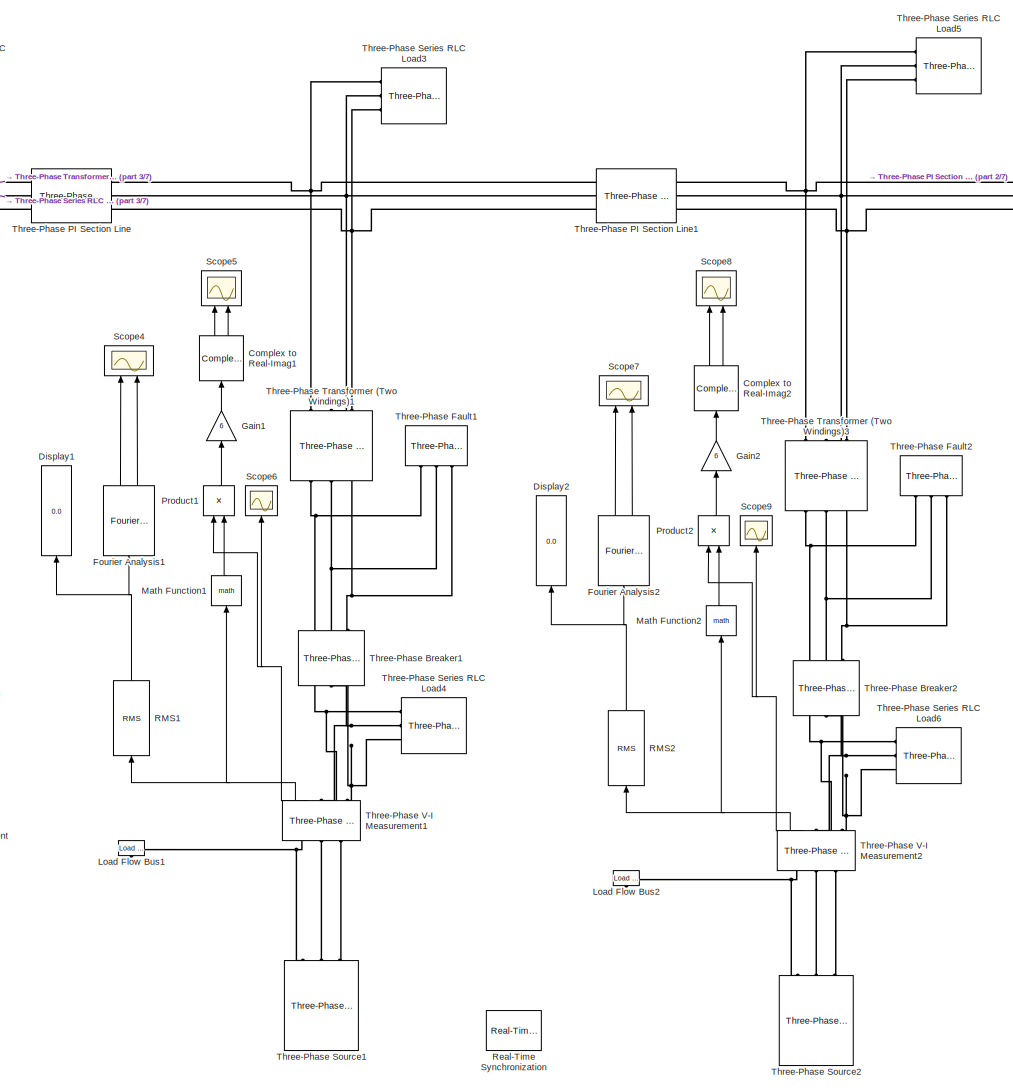
[diagram: root canvas - part 1/7, top center region]
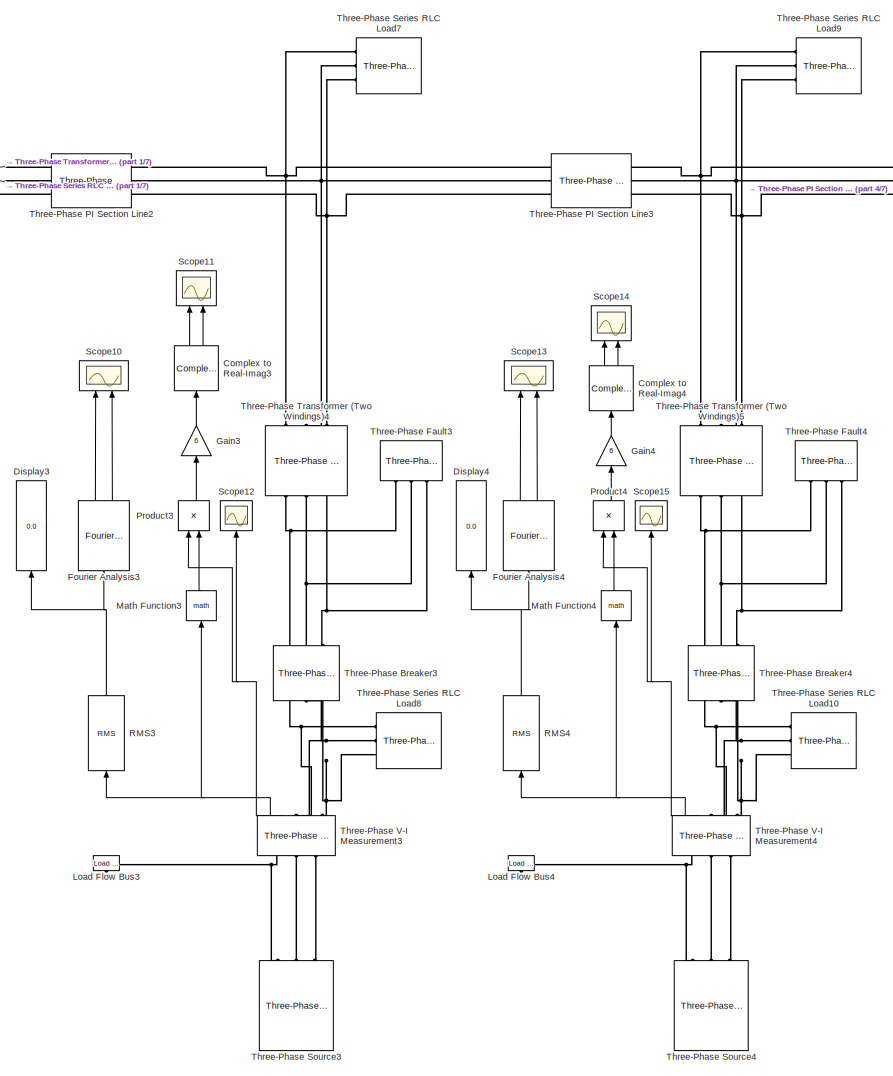
[diagram: root canvas - part 2/7, top right region]
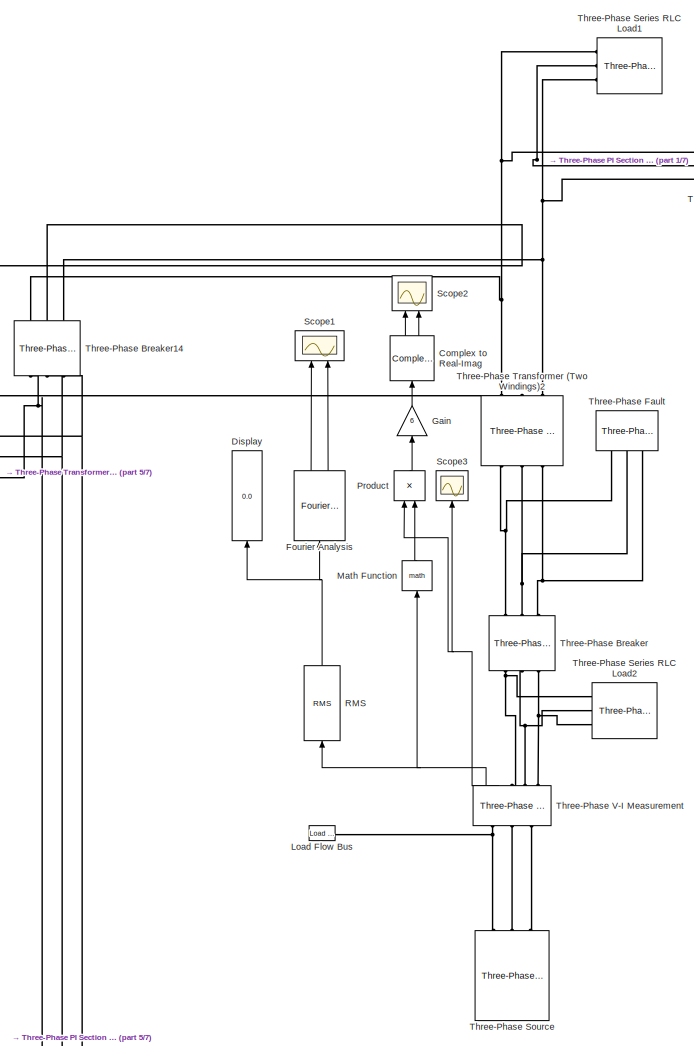
[diagram: root canvas - part 3/7, top left region]
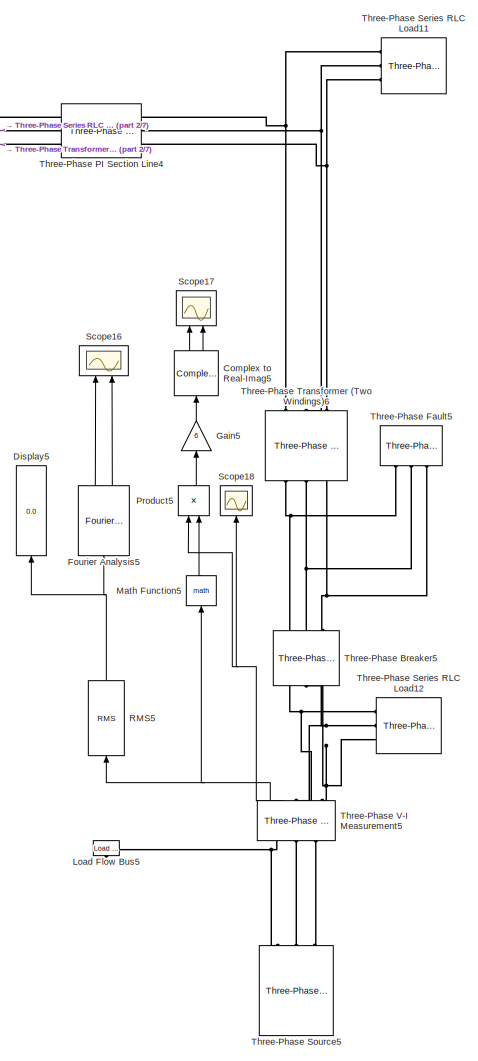
[diagram: root canvas - part 4/7, top right region]
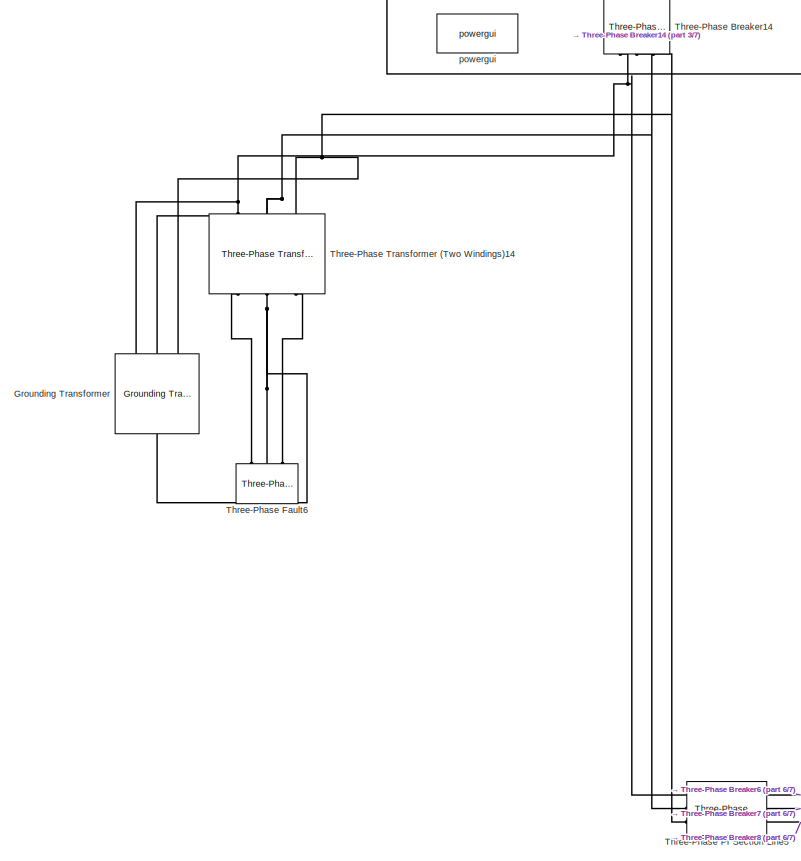
[diagram: root canvas - part 5/7, middle left region]
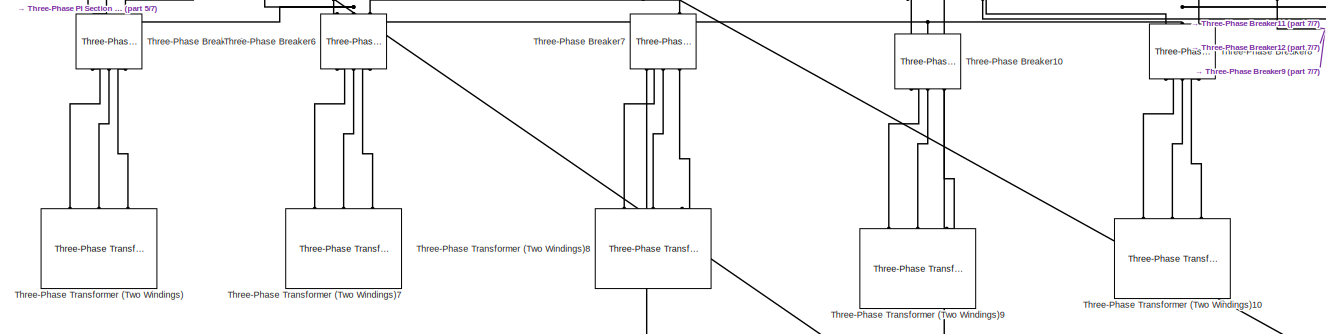
[diagram: root canvas - part 6/7, central region]
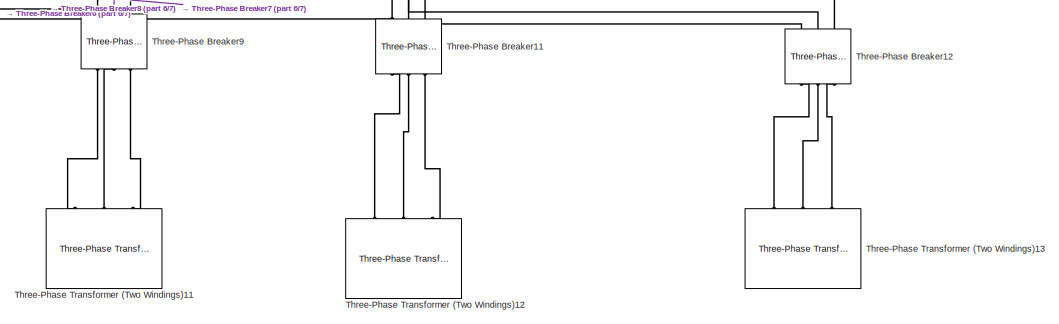
[diagram: root canvas - part 7/7, middle right region]
MODEL slx_9a9568b92dcb
KIND model
CONFIG AbsTol = auto
CONFIG EnableMultiTasking = off
CONFIG FixedStep = auto
CONFIG MaxStep = auto
CONFIG MinStep = auto
CONFIG RelTol = 1e-3
CONFIG SampleTimeConstraint = Unconstrained
CONFIG Solver = VariableStepAuto
CONFIG SolverName = VariableStepAuto
CONFIG StartTime = 0.0
CONFIG StopTime = 10.0
BLOCK [ComplexToRealImag] Complex to Real-Imag
  Ports = [1, 2]
BLOCK [ComplexToRealImag] Complex to Real-Imag1
  Ports = [1, 2]
BLOCK [ComplexToRealImag] Complex to Real-Imag2
  Ports = [1, 2]
BLOCK [ComplexToRealImag] Complex to Real-Imag3
  Ports = [1, 2]
BLOCK [ComplexToRealImag] Complex to Real-Imag4
  Ports = [1, 2]
BLOCK [ComplexToRealImag] Complex to Real-Imag5
  Ports = [1, 2]
BLOCK [Display] Display
  Decimation = 1
  Ports = [1]
BLOCK [Display] Display1
  Decimation = 1
  Ports = [1]
BLOCK [Display] Display2
  Decimation = 1
  Ports = [1]
BLOCK [Display] Display3
  Decimation = 1
  Ports = [1]
BLOCK [Display] Display4
  Decimation = 1
  Ports = [1]
BLOCK [Display] Display5
  Decimation = 1
  Ports = [1]
BLOCK [Reference] Fourier Analysis  REF=peGeneralControl/Fourier Analysis
  Ports = [1, 2]
  SourceBlock = peGeneralControl/Fourier Analysis
  SourceType = Fourier Analysis
BLOCK [Reference] Fourier Analysis1  REF=peGeneralControl/Fourier Analysis
  Ports = [1, 2]
  SourceBlock = peGeneralControl/Fourier Analysis
  SourceType = Fourier Analysis
BLOCK [Reference] Fourier Analysis2  REF=peGeneralControl/Fourier Analysis
  Ports = [1, 2]
  SourceBlock = peGeneralControl/Fourier Analysis
  SourceType = Fourier Analysis
BLOCK [Reference] Fourier Analysis3  REF=peGeneralControl/Fourier Analysis
  Ports = [1, 2]
  SourceBlock = peGeneralControl/Fourier Analysis
  SourceType = Fourier Analysis
BLOCK [Reference] Fourier Analysis4  REF=peGeneralControl/Fourier Analysis
  Ports = [1, 2]
  SourceBlock = peGeneralControl/Fourier Analysis
  SourceType = Fourier Analysis
BLOCK [Reference] Fourier Analysis5  REF=peGeneralControl/Fourier Analysis
  Ports = [1, 2]
  SourceBlock = peGeneralControl/Fourier Analysis
  SourceType = Fourier Analysis
BLOCK [Gain] Gain
  Gain = 6
  OutDataTypeStr = Inherit: Inherit via internal rule
  ParamDataTypeStr = Inherit: Inherit via internal rule
  SaturateOnIntegerOverflow = off
BLOCK [Gain] Gain1
  Gain = 6
  OutDataTypeStr = Inherit: Inherit via internal rule
  ParamDataTypeStr = Inherit: Inherit via internal rule
  SaturateOnIntegerOverflow = off
BLOCK [Gain] Gain2
  Gain = 6
  OutDataTypeStr = Inherit: Inherit via internal rule
  ParamDataTypeStr = Inherit: Inherit via internal rule
  SaturateOnIntegerOverflow = off
BLOCK [Gain] Gain3
  Gain = 6
  OutDataTypeStr = Inherit: Inherit via internal rule
  ParamDataTypeStr = Inherit: Inherit via internal rule
  SaturateOnIntegerOverflow = off
BLOCK [Gain] Gain4
  Gain = 6
  OutDataTypeStr = Inherit: Inherit via internal rule
  ParamDataTypeStr = Inherit: Inherit via internal rule
  SaturateOnIntegerOverflow = off
BLOCK [Gain] Gain5
  Gain = 6
  OutDataTypeStr = Inherit: Inherit via internal rule
  ParamDataTypeStr = Inherit: Inherit via internal rule
  SaturateOnIntegerOverflow = off
BLOCK [Reference] Grounding Transformer   REF=powerlib/Elements/Grounding
Transformer 
  Ports = [0, 0, 0, 0, 0, 3, 1]
  SourceBlock = powerlib/Elements/Grounding\nTransformer
  SourceProductBaseCode = PS
  SourceProductName = Simscape Power Systems
  SourceType = Grounding Transformer
BLOCK [Reference] Load Flow Bus  REF=powerlib/Measurements/Load Flow Bus
  AttributesFormatString = %<ID>\n%<Vbase>V\n%<VLF>pu\n%<angleLF>deg.
  Ports = [0, 0, 0, 0, 0, 1]
  SourceBlock = powerlib/Measurements/Load Flow Bus
  SourceProductBaseCode = PS
  SourceProductName = Simscape Power Systems
  SourceType = Load Flow Bus
BLOCK [Reference] Load Flow Bus1  REF=powerlib/Measurements/Load Flow Bus
  AttributesFormatString = %<ID>\n%<Vbase>V\n%<VLF>pu\n%<angleLF>deg.
  Ports = [0, 0, 0, 0, 0, 1]
  SourceBlock = powerlib/Measurements/Load Flow Bus
  SourceProductBaseCode = PS
  SourceProductName = Simscape Power Systems
  SourceType = Load Flow Bus
BLOCK [Reference] Load Flow Bus2  REF=powerlib/Measurements/Load Flow Bus
  AttributesFormatString = %<ID>\n%<Vbase>V\n%<VLF>pu\n%<angleLF>deg.
  Ports = [0, 0, 0, 0, 0, 1]
  SourceBlock = powerlib/Measurements/Load Flow Bus
  SourceProductBaseCode = PS
  SourceProductName = Simscape Power Systems
  SourceType = Load Flow Bus
BLOCK [Reference] Load Flow Bus3  REF=powerlib/Measurements/Load Flow Bus
  AttributesFormatString = %<ID>\n%<Vbase>V\n%<VLF>pu\n%<angleLF>deg.
  Ports = [0, 0, 0, 0, 0, 1]
  SourceBlock = powerlib/Measurements/Load Flow Bus
  SourceProductBaseCode = PS
  SourceProductName = Simscape Power Systems
  SourceType = Load Flow Bus
BLOCK [Reference] Load Flow Bus4  REF=powerlib/Measurements/Load Flow Bus
  AttributesFormatString = %<ID>\n%<Vbase>V\n%<VLF>pu\n%<angleLF>deg.
  Ports = [0, 0, 0, 0, 0, 1]
  SourceBlock = powerlib/Measurements/Load Flow Bus
  SourceProductBaseCode = PS
  SourceProductName = Simscape Power Systems
  SourceType = Load Flow Bus
BLOCK [Reference] Load Flow Bus5  REF=powerlib/Measurements/Load Flow Bus
  AttributesFormatString = %<ID>\n%<Vbase>V\n%<VLF>pu\n%<angleLF>deg.
  Ports = [0, 0, 0, 0, 0, 1]
  SourceBlock = powerlib/Measurements/Load Flow Bus
  SourceProductBaseCode = PS
  SourceProductName = Simscape Power Systems
  SourceType = Load Flow Bus
BLOCK [Math] Math Function
  Ports = [1, 1]
BLOCK [Math] Math Function1
  Ports = [1, 1]
BLOCK [Math] Math Function2
  Ports = [1, 1]
BLOCK [Math] Math Function3
  Ports = [1, 1]
BLOCK [Math] Math Function4
  Ports = [1, 1]
BLOCK [Math] Math Function5
  Ports = [1, 1]
BLOCK [Product] Product
  InputSameDT = off
  OutDataTypeStr = Inherit: Inherit via internal rule
  Ports = [2, 1]
  RndMeth = Floor
  SaturateOnIntegerOverflow = off
BLOCK [Product] Product1
  InputSameDT = off
  OutDataTypeStr = Inherit: Inherit via internal rule
  Ports = [2, 1]
  RndMeth = Floor
  SaturateOnIntegerOverflow = off
BLOCK [Product] Product2
  InputSameDT = off
  OutDataTypeStr = Inherit: Inherit via internal rule
  Ports = [2, 1]
  RndMeth = Floor
  SaturateOnIntegerOverflow = off
BLOCK [Product] Product3
  InputSameDT = off
  OutDataTypeStr = Inherit: Inherit via internal rule
  Ports = [2, 1]
  RndMeth = Floor
  SaturateOnIntegerOverflow = off
BLOCK [Product] Product4
  InputSameDT = off
  OutDataTypeStr = Inherit: Inherit via internal rule
  Ports = [2, 1]
  RndMeth = Floor
  SaturateOnIntegerOverflow = off
BLOCK [Product] Product5
  InputSameDT = off
  OutDataTypeStr = Inherit: Inherit via internal rule
  Ports = [2, 1]
  RndMeth = Floor
  SaturateOnIntegerOverflow = off
BLOCK [Reference] RMS  REF=dspstat3/RMS
  Ports = [1, 1]
  SourceBlock = dspstat3/RMS
  SourceProductBaseCode = DS
  SourceProductName = DSP System Toolbox
  SourceType = RMS
  UserDataPersistent = on
BLOCK [Reference] RMS1  REF=dspstat3/RMS
  Ports = [1, 1]
  SourceBlock = dspstat3/RMS
  SourceProductBaseCode = DS
  SourceProductName = DSP System Toolbox
  SourceType = RMS
  UserDataPersistent = on
BLOCK [Reference] RMS2  REF=dspstat3/RMS
  Ports = [1, 1]
  SourceBlock = dspstat3/RMS
  SourceProductBaseCode = DS
  SourceProductName = DSP System Toolbox
  SourceType = RMS
  UserDataPersistent = on
BLOCK [Reference] RMS3  REF=dspstat3/RMS
  Ports = [1, 1]
  SourceBlock = dspstat3/RMS
  SourceProductBaseCode = DS
  SourceProductName = DSP System Toolbox
  SourceType = RMS
  UserDataPersistent = on
BLOCK [Reference] RMS4  REF=dspstat3/RMS
  Ports = [1, 1]
  SourceBlock = dspstat3/RMS
  SourceProductBaseCode = DS
  SourceProductName = DSP System Toolbox
  SourceType = RMS
  UserDataPersistent = on
BLOCK [Reference] RMS5  REF=dspstat3/RMS
  Ports = [1, 1]
  SourceBlock = dspstat3/RMS
  SourceProductBaseCode = DS
  SourceProductName = DSP System Toolbox
  SourceType = RMS
  UserDataPersistent = on
BLOCK [Reference] Real-Time Synchronization  REF=sldrtlib/Real-Time
Synchronization
  Ports = []
  SourceBlock = sldrtlib/Real-Time\nSynchronization
  SourceProductBaseCode = WT
  SourceProductName = Simulink Desktop Real-Time
  SourceType = Simulink Desktop Real-Time Synchronization
BLOCK [Scope] Scope1
  Floating = off
  NumInputPorts = 2
  Ports = [2]
  ScopeSpecificationString = Simulink.scopes.TimeScopeBlockCfg('CurrentConfiguration', extmgr.ConfigurationSet(extmgr.Configuration('Core','General UI',true),extmgr.Configuration('Core','Source UI',true),extmgr.Configuration('Sources','WiredSimulink',true,'DataLoggingVariableName','ScopeData1'),extmgr.Configuration('Visuals','Time Domain',true,'SerializedDisplays',{struct('MinYLimReal','-7150.85611','MaxYLimReal','64357.71366...<+1547ch>
BLOCK [Scope] Scope10
  Floating = off
  NumInputPorts = 2
  Ports = [2]
  ScopeSpecificationString = Simulink.scopes.TimeScopeBlockCfg('CurrentConfiguration', extmgr.ConfigurationSet(extmgr.Configuration('Core','General UI',true),extmgr.Configuration('Core','Source UI',true),extmgr.Configuration('Sources','WiredSimulink',true,'DataLoggingVariableName','ScopeData7'),extmgr.Configuration('Visuals','Time Domain',true,'SerializedDisplays',{struct('MinYLimReal','-7150.85611','MaxYLimReal','64357.71366...<+1547ch>
BLOCK [Scope] Scope11
  Floating = off
  NumInputPorts = 2
  Ports = [2]
  ScopeSpecificationString = Simulink.scopes.TimeScopeBlockCfg('CurrentConfiguration', extmgr.ConfigurationSet(extmgr.Configuration('Core','General UI',true),extmgr.Configuration('Core','Source UI',true),extmgr.Configuration('Sources','WiredSimulink',true,'DataLoggingVariableName','ScopeData8'),extmgr.Configuration('Visuals','Time Domain',true,'SerializedDisplays',{struct('MinYLimReal','-31894.01729','MaxYLimReal','38953.4457...<+1575ch>
BLOCK [Scope] Scope12
  Floating = off
  NumInputPorts = 1
  Ports = [1]
  ScopeSpecificationString = Simulink.scopes.TimeScopeBlockCfg('CurrentConfiguration', extmgr.ConfigurationSet(extmgr.Configuration('Core','General UI',true),extmgr.Configuration('Core','Source UI',true),extmgr.Configuration('Sources','WiredSimulink',true,'DataLoggingVariableName','ScopeData9'),extmgr.Configuration('Visuals','Time Domain',true),extmgr.Configuration('Tools','Plot Navigation',true),extmgr.Configuration('Tools',...<+40ch>
BLOCK [Scope] Scope13
  Floating = off
  NumInputPorts = 2
  Ports = [2]
  ScopeSpecificationString = Simulink.scopes.TimeScopeBlockCfg('CurrentConfiguration', extmgr.ConfigurationSet(extmgr.Configuration('Core','General UI',true),extmgr.Configuration('Core','Source UI',true),extmgr.Configuration('Sources','WiredSimulink',true,'DataLoggingVariableName','ScopeData1'),extmgr.Configuration('Visuals','Time Domain',true,'SerializedDisplays',{struct('MinYLimReal','-7150.85611','MaxYLimReal','64357.71366...<+1551ch>
BLOCK [Scope] Scope14
  Floating = off
  NumInputPorts = 2
  Ports = [2]
  ScopeSpecificationString = Simulink.scopes.TimeScopeBlockCfg('CurrentConfiguration', extmgr.ConfigurationSet(extmgr.Configuration('Core','General UI',true),extmgr.Configuration('Core','Source UI',true),extmgr.Configuration('Sources','WiredSimulink',true,'DataLoggingVariableName','ScopeData2'),extmgr.Configuration('Visuals','Time Domain',true,'SerializedDisplays',{struct('MinYLimReal','-14.27839','MaxYLimReal','13.71434','YL...<+1557ch>
BLOCK [Scope] Scope15
  Floating = off
  NumInputPorts = 1
  Ports = [1]
  ScopeSpecificationString = Simulink.scopes.TimeScopeBlockCfg('CurrentConfiguration', extmgr.ConfigurationSet(extmgr.Configuration('Core','General UI',true),extmgr.Configuration('Core','Source UI',true),extmgr.Configuration('Sources','WiredSimulink',true,'DataLoggingVariableName','ScopeData3'),extmgr.Configuration('Visuals','Time Domain',true,'SerializedDisplays',{struct('MinYLimReal','-2.46762','MaxYLimReal','2.20981','YLab...<+1476ch>
BLOCK [Scope] Scope16
  Floating = off
  NumInputPorts = 2
  Ports = [2]
  ScopeSpecificationString = Simulink.scopes.TimeScopeBlockCfg('CurrentConfiguration', extmgr.ConfigurationSet(extmgr.Configuration('Core','General UI',true),extmgr.Configuration('Core','Source UI',true),extmgr.Configuration('Sources','WiredSimulink',true,'DataLoggingVariableName','ScopeData4'),extmgr.Configuration('Visuals','Time Domain',true,'SerializedDisplays',{struct('MinYLimReal','-7150.85611','MaxYLimReal','64357.71366...<+1547ch>
BLOCK [Scope] Scope17
  Floating = off
  NumInputPorts = 2
  Ports = [2]
  ScopeSpecificationString = Simulink.scopes.TimeScopeBlockCfg('CurrentConfiguration', extmgr.ConfigurationSet(extmgr.Configuration('Core','General UI',true),extmgr.Configuration('Core','Source UI',true),extmgr.Configuration('Sources','WiredSimulink',true,'DataLoggingVariableName','ScopeData5'),extmgr.Configuration('Visuals','Time Domain',true,'SerializedDisplays',{struct('MinYLimReal','-31894.01653','MaxYLimReal','38953.4649...<+1575ch>
BLOCK [Scope] Scope18
  Floating = off
  NumInputPorts = 1
  Ports = [1]
  ScopeSpecificationString = Simulink.scopes.TimeScopeBlockCfg('CurrentConfiguration', extmgr.ConfigurationSet(extmgr.Configuration('Core','General UI',true),extmgr.Configuration('Core','Source UI',true),extmgr.Configuration('Sources','WiredSimulink',true,'DataLoggingVariableName','ScopeData6'),extmgr.Configuration('Visuals','Time Domain',true),extmgr.Configuration('Tools','Plot Navigation',true),extmgr.Configuration('Tools',...<+40ch>
BLOCK [Scope] Scope2
  Floating = off
  NumInputPorts = 2
  Ports = [2]
  ScopeSpecificationString = Simulink.scopes.TimeScopeBlockCfg('CurrentConfiguration', extmgr.ConfigurationSet(extmgr.Configuration('Core','General UI',true),extmgr.Configuration('Core','Source UI',true),extmgr.Configuration('Sources','WiredSimulink',true,'DataLoggingVariableName','ScopeData2'),extmgr.Configuration('Visuals','Time Domain',true,'SerializedDisplays',{struct('MinYLimReal','-422.26109','MaxYLimReal','328.51662','...<+1559ch>
BLOCK [Scope] Scope3
  Floating = off
  NumInputPorts = 1
  Ports = [1]
  ScopeSpecificationString = Simulink.scopes.TimeScopeBlockCfg('CurrentConfiguration', extmgr.ConfigurationSet(extmgr.Configuration('Core','General UI',true),extmgr.Configuration('Core','Source UI',true),extmgr.Configuration('Sources','WiredSimulink',true,'DataLoggingVariableName','ScopeData1'),extmgr.Configuration('Visuals','Time Domain',true),extmgr.Configuration('Tools','Plot Navigation',true),extmgr.Configuration('Tools',...<+40ch>
BLOCK [Scope] Scope4
  Floating = off
  NumInputPorts = 2
  Ports = [2]
  ScopeSpecificationString = Simulink.scopes.TimeScopeBlockCfg('CurrentConfiguration', extmgr.ConfigurationSet(extmgr.Configuration('Core','General UI',true),extmgr.Configuration('Core','Source UI',true),extmgr.Configuration('Sources','WiredSimulink',true,'DataLoggingVariableName','ScopeData1'),extmgr.Configuration('Visuals','Time Domain',true,'SerializedDisplays',{struct('MinYLimReal','-7150.85611','MaxYLimReal','64357.71366...<+1547ch>
BLOCK [Scope] Scope5
  Floating = off
  NumInputPorts = 2
  Ports = [2]
  ScopeSpecificationString = Simulink.scopes.TimeScopeBlockCfg('CurrentConfiguration', extmgr.ConfigurationSet(extmgr.Configuration('Core','General UI',true),extmgr.Configuration('Core','Source UI',true),extmgr.Configuration('Sources','WiredSimulink',true,'DataLoggingVariableName','ScopeData2'),extmgr.Configuration('Visuals','Time Domain',true,'SerializedDisplays',{struct('MinYLimReal','-31894.01729','MaxYLimReal','38953.4457...<+1575ch>
BLOCK [Scope] Scope6
  Floating = off
  NumInputPorts = 1
  Ports = [1]
  ScopeSpecificationString = Simulink.scopes.TimeScopeBlockCfg('CurrentConfiguration', extmgr.ConfigurationSet(extmgr.Configuration('Core','General UI',true),extmgr.Configuration('Core','Source UI',true),extmgr.Configuration('Sources','WiredSimulink',true,'DataLoggingVariableName','ScopeData3'),extmgr.Configuration('Visuals','Time Domain',true),extmgr.Configuration('Tools','Plot Navigation',true),extmgr.Configuration('Tools',...<+40ch>
BLOCK [Scope] Scope7
  Floating = off
  NumInputPorts = 2
  Ports = [2]
  ScopeSpecificationString = Simulink.scopes.TimeScopeBlockCfg('CurrentConfiguration', extmgr.ConfigurationSet(extmgr.Configuration('Core','General UI',true),extmgr.Configuration('Core','Source UI',true),extmgr.Configuration('Sources','WiredSimulink',true,'DataLoggingVariableName','ScopeData4'),extmgr.Configuration('Visuals','Time Domain',true,'SerializedDisplays',{struct('MinYLimReal','-7150.85611','MaxYLimReal','64357.71366...<+1547ch>
BLOCK [Scope] Scope8
  Floating = off
  NumInputPorts = 2
  Ports = [2]
  ScopeSpecificationString = Simulink.scopes.TimeScopeBlockCfg('CurrentConfiguration', extmgr.ConfigurationSet(extmgr.Configuration('Core','General UI',true),extmgr.Configuration('Core','Source UI',true),extmgr.Configuration('Sources','WiredSimulink',true,'DataLoggingVariableName','ScopeData5'),extmgr.Configuration('Visuals','Time Domain',true,'SerializedDisplays',{struct('MinYLimReal','-31894.01729','MaxYLimReal','38953.4457...<+1575ch>
BLOCK [Scope] Scope9
  Floating = off
  NumInputPorts = 1
  Ports = [1]
  ScopeSpecificationString = Simulink.scopes.TimeScopeBlockCfg('CurrentConfiguration', extmgr.ConfigurationSet(extmgr.Configuration('Core','General UI',true),extmgr.Configuration('Core','Source UI',true),extmgr.Configuration('Sources','WiredSimulink',true,'DataLoggingVariableName','ScopeData6'),extmgr.Configuration('Visuals','Time Domain',true),extmgr.Configuration('Tools','Plot Navigation',true),extmgr.Configuration('Tools',...<+40ch>
BLOCK [Reference] Three-Phase Breaker  REF=powerlib/Elements/Three-Phase Breaker
  Ports = [0, 0, 0, 0, 0, 3, 3]
  SourceBlock = powerlib/Elements/Three-Phase Breaker
  SourceProductBaseCode = PS
  SourceProductName = Simscape Power Systems
  SourceType = Three-Phase Breaker
BLOCK [Reference] Three-Phase Breaker1  REF=powerlib/Elements/Three-Phase Breaker
  Ports = [0, 0, 0, 0, 0, 3, 3]
  SourceBlock = powerlib/Elements/Three-Phase Breaker
  SourceProductBaseCode = PS
  SourceProductName = Simscape Power Systems
  SourceType = Three-Phase Breaker
BLOCK [Reference] Three-Phase Breaker10  REF=powerlib/Elements/Three-Phase Breaker
  Ports = [0, 0, 0, 0, 0, 3, 3]
  SourceBlock = powerlib/Elements/Three-Phase Breaker
  SourceProductBaseCode = PS
  SourceProductName = Simscape Power Systems
  SourceType = Three-Phase Breaker
BLOCK [Reference] Three-Phase Breaker11  REF=powerlib/Elements/Three-Phase Breaker
  Ports = [0, 0, 0, 0, 0, 3, 3]
  SourceBlock = powerlib/Elements/Three-Phase Breaker
  SourceProductBaseCode = PS
  SourceProductName = Simscape Power Systems
  SourceType = Three-Phase Breaker
BLOCK [Reference] Three-Phase Breaker12  REF=powerlib/Elements/Three-Phase Breaker
  Ports = [0, 0, 0, 0, 0, 3, 3]
  SourceBlock = powerlib/Elements/Three-Phase Breaker
  SourceProductBaseCode = PS
  SourceProductName = Simscape Power Systems
  SourceType = Three-Phase Breaker
BLOCK [Reference] Three-Phase Breaker13  REF=powerlib/Elements/Three-Phase Breaker
  Ports = [0, 0, 0, 0, 0, 3, 3]
  SourceBlock = powerlib/Elements/Three-Phase Breaker
  SourceProductBaseCode = PS
  SourceProductName = Simscape Power Systems
  SourceType = Three-Phase Breaker
BLOCK [Reference] Three-Phase Breaker14  REF=powerlib/Elements/Three-Phase Breaker
  Ports = [0, 0, 0, 0, 0, 3, 3]
  SourceBlock = powerlib/Elements/Three-Phase Breaker
  SourceProductBaseCode = PS
  SourceProductName = Simscape Power Systems
  SourceType = Three-Phase Breaker
BLOCK [Reference] Three-Phase Breaker2  REF=powerlib/Elements/Three-Phase Breaker
  Ports = [0, 0, 0, 0, 0, 3, 3]
  SourceBlock = powerlib/Elements/Three-Phase Breaker
  SourceProductBaseCode = PS
  SourceProductName = Simscape Power Systems
  SourceType = Three-Phase Breaker
BLOCK [Reference] Three-Phase Breaker3  REF=powerlib/Elements/Three-Phase Breaker
  Ports = [0, 0, 0, 0, 0, 3, 3]
  SourceBlock = powerlib/Elements/Three-Phase Breaker
  SourceProductBaseCode = PS
  SourceProductName = Simscape Power Systems
  SourceType = Three-Phase Breaker
BLOCK [Reference] Three-Phase Breaker4  REF=powerlib/Elements/Three-Phase Breaker
  Ports = [0, 0, 0, 0, 0, 3, 3]
  SourceBlock = powerlib/Elements/Three-Phase Breaker
  SourceProductBaseCode = PS
  SourceProductName = Simscape Power Systems
  SourceType = Three-Phase Breaker
BLOCK [Reference] Three-Phase Breaker5  REF=powerlib/Elements/Three-Phase Breaker
  Ports = [0, 0, 0, 0, 0, 3, 3]
  SourceBlock = powerlib/Elements/Three-Phase Breaker
  SourceProductBaseCode = PS
  SourceProductName = Simscape Power Systems
  SourceType = Three-Phase Breaker
BLOCK [Reference] Three-Phase Breaker6  REF=powerlib/Elements/Three-Phase Breaker
  Ports = [0, 0, 0, 0, 0, 3, 3]
  SourceBlock = powerlib/Elements/Three-Phase Breaker
  SourceProductBaseCode = PS
  SourceProductName = Simscape Power Systems
  SourceType = Three-Phase Breaker
BLOCK [Reference] Three-Phase Breaker7  REF=powerlib/Elements/Three-Phase Breaker
  Ports = [0, 0, 0, 0, 0, 3, 3]
  SourceBlock = powerlib/Elements/Three-Phase Breaker
  SourceProductBaseCode = PS
  SourceProductName = Simscape Power Systems
  SourceType = Three-Phase Breaker
BLOCK [Reference] Three-Phase Breaker8  REF=powerlib/Elements/Three-Phase Breaker
  Ports = [0, 0, 0, 0, 0, 3, 3]
  SourceBlock = powerlib/Elements/Three-Phase Breaker
  SourceProductBaseCode = PS
  SourceProductName = Simscape Power Systems
  SourceType = Three-Phase Breaker
BLOCK [Reference] Three-Phase Breaker9  REF=powerlib/Elements/Three-Phase Breaker
  Ports = [0, 0, 0, 0, 0, 3, 3]
  SourceBlock = powerlib/Elements/Three-Phase Breaker
  SourceProductBaseCode = PS
  SourceProductName = Simscape Power Systems
  SourceType = Three-Phase Breaker
BLOCK [Reference] Three-Phase Fault  REF=powerlib/Elements/Three-Phase Fault
  Ports = [0, 0, 0, 0, 0, 3]
  SourceBlock = powerlib/Elements/Three-Phase Fault
  SourceProductBaseCode = PS
  SourceProductName = Simscape Power Systems
  SourceType = Three-Phase Fault
BLOCK [Reference] Three-Phase Fault1  REF=powerlib/Elements/Three-Phase Fault
  Ports = [0, 0, 0, 0, 0, 3]
  SourceBlock = powerlib/Elements/Three-Phase Fault
  SourceProductBaseCode = PS
  SourceProductName = Simscape Power Systems
  SourceType = Three-Phase Fault
BLOCK [Reference] Three-Phase Fault2  REF=powerlib/Elements/Three-Phase Fault
  Ports = [0, 0, 0, 0, 0, 3]
  SourceBlock = powerlib/Elements/Three-Phase Fault
  SourceProductBaseCode = PS
  SourceProductName = Simscape Power Systems
  SourceType = Three-Phase Fault
BLOCK [Reference] Three-Phase Fault3  REF=powerlib/Elements/Three-Phase Fault
  Ports = [0, 0, 0, 0, 0, 3]
  SourceBlock = powerlib/Elements/Three-Phase Fault
  SourceProductBaseCode = PS
  SourceProductName = Simscape Power Systems
  SourceType = Three-Phase Fault
BLOCK [Reference] Three-Phase Fault4  REF=powerlib/Elements/Three-Phase Fault
  Ports = [0, 0, 0, 0, 0, 3]
  SourceBlock = powerlib/Elements/Three-Phase Fault
  SourceProductBaseCode = PS
  SourceProductName = Simscape Power Systems
  SourceType = Three-Phase Fault
BLOCK [Reference] Three-Phase Fault5  REF=powerlib/Elements/Three-Phase Fault
  Ports = [0, 0, 0, 0, 0, 3]
  SourceBlock = powerlib/Elements/Three-Phase Fault
  SourceProductBaseCode = PS
  SourceProductName = Simscape Power Systems
  SourceType = Three-Phase Fault
BLOCK [Reference] Three-Phase Fault6  REF=powerlib/Elements/Three-Phase Fault
  Ports = [0, 0, 0, 0, 0, 3]
  SourceBlock = powerlib/Elements/Three-Phase Fault
  SourceProductBaseCode = PS
  SourceProductName = Simscape Power Systems
  SourceType = Three-Phase Fault
BLOCK [Reference] Three-Phase PI Section Line  REF=powerlib/Elements/Three-Phase
PI Section Line
  AttributesFormatString = \n
  Ports = [0, 0, 0, 0, 0, 3, 3]
  SourceBlock = powerlib/Elements/Three-Phase\nPI Section Line
  SourceProductBaseCode = PS
  SourceProductName = Simscape Power Systems
  SourceType = Three-Phase PI Section Line
BLOCK [Reference] Three-Phase PI Section Line1  REF=powerlib/Elements/Three-Phase
PI Section Line
  AttributesFormatString = \n
  Ports = [0, 0, 0, 0, 0, 3, 3]
  SourceBlock = powerlib/Elements/Three-Phase\nPI Section Line
  SourceProductBaseCode = PS
  SourceProductName = Simscape Power Systems
  SourceType = Three-Phase PI Section Line
BLOCK [Reference] Three-Phase PI Section Line2  REF=powerlib/Elements/Three-Phase
PI Section Line
  AttributesFormatString = \n
  Ports = [0, 0, 0, 0, 0, 3, 3]
  SourceBlock = powerlib/Elements/Three-Phase\nPI Section Line
  SourceProductBaseCode = PS
  SourceProductName = Simscape Power Systems
  SourceType = Three-Phase PI Section Line
BLOCK [Reference] Three-Phase PI Section Line3  REF=powerlib/Elements/Three-Phase
PI Section Line
  AttributesFormatString = \n
  Ports = [0, 0, 0, 0, 0, 3, 3]
  SourceBlock = powerlib/Elements/Three-Phase\nPI Section Line
  SourceProductBaseCode = PS
  SourceProductName = Simscape Power Systems
  SourceType = Three-Phase PI Section Line
BLOCK [Reference] Three-Phase PI Section Line4  REF=powerlib/Elements/Three-Phase
PI Section Line
  AttributesFormatString = \n
  Ports = [0, 0, 0, 0, 0, 3, 3]
  SourceBlock = powerlib/Elements/Three-Phase\nPI Section Line
  SourceProductBaseCode = PS
  SourceProductName = Simscape Power Systems
  SourceType = Three-Phase PI Section Line
BLOCK [Reference] Three-Phase PI Section Line5  REF=powerlib/Elements/Three-Phase
PI Section Line
  AttributesFormatString = \n
  Ports = [0, 0, 0, 0, 0, 3, 3]
  SourceBlock = powerlib/Elements/Three-Phase\nPI Section Line
  SourceProductBaseCode = PS
  SourceProductName = Simscape Power Systems
  SourceType = Three-Phase PI Section Line
BLOCK [Reference] Three-Phase Series RLC Load1  REF=powerlib/Elements/Three-Phase
Series RLC Load
  AttributesFormatString = \n
  Ports = [0, 0, 0, 0, 0, 3]
  SourceBlock = powerlib/Elements/Three-Phase\nSeries RLC Load
  SourceProductBaseCode = PS
  SourceProductName = Simscape Power Systems
  SourceType = Three-Phase Series RLC Load
BLOCK [Reference] Three-Phase Series RLC Load10  REF=powerlib/Elements/Three-Phase
Series RLC Load
  AttributesFormatString = \n
  Ports = [0, 0, 0, 0, 0, 3]
  SourceBlock = powerlib/Elements/Three-Phase\nSeries RLC Load
  SourceProductBaseCode = PS
  SourceProductName = Simscape Power Systems
  SourceType = Three-Phase Series RLC Load
BLOCK [Reference] Three-Phase Series RLC Load11  REF=powerlib/Elements/Three-Phase
Series RLC Load
  AttributesFormatString = \n
  Ports = [0, 0, 0, 0, 0, 3]
  SourceBlock = powerlib/Elements/Three-Phase\nSeries RLC Load
  SourceProductBaseCode = PS
  SourceProductName = Simscape Power Systems
  SourceType = Three-Phase Series RLC Load
BLOCK [Reference] Three-Phase Series RLC Load12  REF=powerlib/Elements/Three-Phase
Series RLC Load
  AttributesFormatString = \n
  Ports = [0, 0, 0, 0, 0, 3]
  SourceBlock = powerlib/Elements/Three-Phase\nSeries RLC Load
  SourceProductBaseCode = PS
  SourceProductName = Simscape Power Systems
  SourceType = Three-Phase Series RLC Load
BLOCK [Reference] Three-Phase Series RLC Load2  REF=powerlib/Elements/Three-Phase
Series RLC Load
  AttributesFormatString = \n
  Ports = [0, 0, 0, 0, 0, 3]
  SourceBlock = powerlib/Elements/Three-Phase\nSeries RLC Load
  SourceProductBaseCode = PS
  SourceProductName = Simscape Power Systems
  SourceType = Three-Phase Series RLC Load
BLOCK [Reference] Three-Phase Series RLC Load3  REF=powerlib/Elements/Three-Phase
Series RLC Load
  AttributesFormatString = \n
  Ports = [0, 0, 0, 0, 0, 3]
  SourceBlock = powerlib/Elements/Three-Phase\nSeries RLC Load
  SourceProductBaseCode = PS
  SourceProductName = Simscape Power Systems
  SourceType = Three-Phase Series RLC Load
BLOCK [Reference] Three-Phase Series RLC Load4  REF=powerlib/Elements/Three-Phase
Series RLC Load
  AttributesFormatString = \n
  Ports = [0, 0, 0, 0, 0, 3]
  SourceBlock = powerlib/Elements/Three-Phase\nSeries RLC Load
  SourceProductBaseCode = PS
  SourceProductName = Simscape Power Systems
  SourceType = Three-Phase Series RLC Load
BLOCK [Reference] Three-Phase Series RLC Load5  REF=powerlib/Elements/Three-Phase
Series RLC Load
  AttributesFormatString = \n
  Ports = [0, 0, 0, 0, 0, 3]
  SourceBlock = powerlib/Elements/Three-Phase\nSeries RLC Load
  SourceProductBaseCode = PS
  SourceProductName = Simscape Power Systems
  SourceType = Three-Phase Series RLC Load
BLOCK [Reference] Three-Phase Series RLC Load6  REF=powerlib/Elements/Three-Phase
Series RLC Load
  AttributesFormatString = \n
  Ports = [0, 0, 0, 0, 0, 3]
  SourceBlock = powerlib/Elements/Three-Phase\nSeries RLC Load
  SourceProductBaseCode = PS
  SourceProductName = Simscape Power Systems
  SourceType = Three-Phase Series RLC Load
BLOCK [Reference] Three-Phase Series RLC Load7  REF=powerlib/Elements/Three-Phase
Series RLC Load
  AttributesFormatString = \n
  Ports = [0, 0, 0, 0, 0, 3]
  SourceBlock = powerlib/Elements/Three-Phase\nSeries RLC Load
  SourceProductBaseCode = PS
  SourceProductName = Simscape Power Systems
  SourceType = Three-Phase Series RLC Load
BLOCK [Reference] Three-Phase Series RLC Load8  REF=powerlib/Elements/Three-Phase
Series RLC Load
  AttributesFormatString = \n
  Ports = [0, 0, 0, 0, 0, 3]
  SourceBlock = powerlib/Elements/Three-Phase\nSeries RLC Load
  SourceProductBaseCode = PS
  SourceProductName = Simscape Power Systems
  SourceType = Three-Phase Series RLC Load
BLOCK [Reference] Three-Phase Series RLC Load9  REF=powerlib/Elements/Three-Phase
Series RLC Load
  AttributesFormatString = \n
  Ports = [0, 0, 0, 0, 0, 3]
  SourceBlock = powerlib/Elements/Three-Phase\nSeries RLC Load
  SourceProductBaseCode = PS
  SourceProductName = Simscape Power Systems
  SourceType = Three-Phase Series RLC Load
BLOCK [Reference] Three-Phase Source  REF=powerlib/Electrical
Sources/Three-Phase Source
  Ports = [0, 0, 0, 0, 0, 0, 3]
  SourceBlock = powerlib/Electrical\nSources/Three-Phase Source
  SourceProductBaseCode = PS
  SourceProductName = Simscape Power Systems
  SourceType = Three-Phase Source
BLOCK [Reference] Three-Phase Source1  REF=powerlib/Electrical
Sources/Three-Phase Source
  Ports = [0, 0, 0, 0, 0, 0, 3]
  SourceBlock = powerlib/Electrical\nSources/Three-Phase Source
  SourceProductBaseCode = PS
  SourceProductName = Simscape Power Systems
  SourceType = Three-Phase Source
BLOCK [Reference] Three-Phase Source2  REF=powerlib/Electrical
Sources/Three-Phase Source
  Ports = [0, 0, 0, 0, 0, 0, 3]
  SourceBlock = powerlib/Electrical\nSources/Three-Phase Source
  SourceProductBaseCode = PS
  SourceProductName = Simscape Power Systems
  SourceType = Three-Phase Source
BLOCK [Reference] Three-Phase Source3  REF=powerlib/Electrical
Sources/Three-Phase Source
  Ports = [0, 0, 0, 0, 0, 0, 3]
  SourceBlock = powerlib/Electrical\nSources/Three-Phase Source
  SourceProductBaseCode = PS
  SourceProductName = Simscape Power Systems
  SourceType = Three-Phase Source
BLOCK [Reference] Three-Phase Source4  REF=powerlib/Electrical
Sources/Three-Phase Source
  Ports = [0, 0, 0, 0, 0, 0, 3]
  SourceBlock = powerlib/Electrical\nSources/Three-Phase Source
  SourceProductBaseCode = PS
  SourceProductName = Simscape Power Systems
  SourceType = Three-Phase Source
BLOCK [Reference] Three-Phase Source5  REF=powerlib/Electrical
Sources/Three-Phase Source
  Ports = [0, 0, 0, 0, 0, 0, 3]
  SourceBlock = powerlib/Electrical\nSources/Three-Phase Source
  SourceProductBaseCode = PS
  SourceProductName = Simscape Power Systems
  SourceType = Three-Phase Source
BLOCK [Reference] Three-Phase Transformer (Two Windings)  REF=powerlib/Elements/Three-Phase
Transformer
(Two Windings)
  Ports = [0, 0, 0, 0, 0, 3, 3]
  SourceBlock = powerlib/Elements/Three-Phase\nTransformer\n(Two Windings)
  SourceProductBaseCode = PS
  SourceProductName = Simscape Power Systems
  SourceType = Three-Phase Transformer (Two Windings)
BLOCK [Reference] Three-Phase Transformer (Two Windings)1  REF=powerlib/Elements/Three-Phase
Transformer
(Two Windings)
  Ports = [0, 0, 0, 0, 0, 3, 3]
  SourceBlock = powerlib/Elements/Three-Phase\nTransformer\n(Two Windings)
  SourceProductBaseCode = PS
  SourceProductName = Simscape Power Systems
  SourceType = Three-Phase Transformer (Two Windings)
BLOCK [Reference] Three-Phase Transformer (Two Windings)10  REF=powerlib/Elements/Three-Phase
Transformer
(Two Windings)
  Ports = [0, 0, 0, 0, 0, 3, 3]
  SourceBlock = powerlib/Elements/Three-Phase\nTransformer\n(Two Windings)
  SourceProductBaseCode = PS
  SourceProductName = Simscape Power Systems
  SourceType = Three-Phase Transformer (Two Windings)
BLOCK [Reference] Three-Phase Transformer (Two Windings)11  REF=powerlib/Elements/Three-Phase
Transformer
(Two Windings)
  Ports = [0, 0, 0, 0, 0, 3, 3]
  SourceBlock = powerlib/Elements/Three-Phase\nTransformer\n(Two Windings)
  SourceProductBaseCode = PS
  SourceProductName = Simscape Power Systems
  SourceType = Three-Phase Transformer (Two Windings)
BLOCK [Reference] Three-Phase Transformer (Two Windings)12  REF=powerlib/Elements/Three-Phase
Transformer
(Two Windings)
  Ports = [0, 0, 0, 0, 0, 3, 3]
  SourceBlock = powerlib/Elements/Three-Phase\nTransformer\n(Two Windings)
  SourceProductBaseCode = PS
  SourceProductName = Simscape Power Systems
  SourceType = Three-Phase Transformer (Two Windings)
BLOCK [Reference] Three-Phase Transformer (Two Windings)13  REF=powerlib/Elements/Three-Phase
Transformer
(Two Windings)
  Ports = [0, 0, 0, 0, 0, 3, 3]
  SourceBlock = powerlib/Elements/Three-Phase\nTransformer\n(Two Windings)
  SourceProductBaseCode = PS
  SourceProductName = Simscape Power Systems
  SourceType = Three-Phase Transformer (Two Windings)
BLOCK [Reference] Three-Phase Transformer (Two Windings)14  REF=powerlib/Elements/Three-Phase
Transformer
(Two Windings)
  Ports = [0, 0, 0, 0, 0, 3, 3]
  SourceBlock = powerlib/Elements/Three-Phase\nTransformer\n(Two Windings)
  SourceProductBaseCode = PS
  SourceProductName = Simscape Power Systems
  SourceType = Three-Phase Transformer (Two Windings)
BLOCK [Reference] Three-Phase Transformer (Two Windings)2  REF=powerlib/Elements/Three-Phase
Transformer
(Two Windings)
  Ports = [0, 0, 0, 0, 0, 3, 3]
  SourceBlock = powerlib/Elements/Three-Phase\nTransformer\n(Two Windings)
  SourceProductBaseCode = PS
  SourceProductName = Simscape Power Systems
  SourceType = Three-Phase Transformer (Two Windings)
BLOCK [Reference] Three-Phase Transformer (Two Windings)3  REF=powerlib/Elements/Three-Phase
Transformer
(Two Windings)
  Ports = [0, 0, 0, 0, 0, 3, 3]
  SourceBlock = powerlib/Elements/Three-Phase\nTransformer\n(Two Windings)
  SourceProductBaseCode = PS
  SourceProductName = Simscape Power Systems
  SourceType = Three-Phase Transformer (Two Windings)
BLOCK [Reference] Three-Phase Transformer (Two Windings)4  REF=powerlib/Elements/Three-Phase
Transformer
(Two Windings)
  Ports = [0, 0, 0, 0, 0, 3, 3]
  SourceBlock = powerlib/Elements/Three-Phase\nTransformer\n(Two Windings)
  SourceProductBaseCode = PS
  SourceProductName = Simscape Power Systems
  SourceType = Three-Phase Transformer (Two Windings)
BLOCK [Reference] Three-Phase Transformer (Two Windings)5  REF=powerlib/Elements/Three-Phase
Transformer
(Two Windings)
  Ports = [0, 0, 0, 0, 0, 3, 3]
  SourceBlock = powerlib/Elements/Three-Phase\nTransformer\n(Two Windings)
  SourceProductBaseCode = PS
  SourceProductName = Simscape Power Systems
  SourceType = Three-Phase Transformer (Two Windings)
BLOCK [Reference] Three-Phase Transformer (Two Windings)6  REF=powerlib/Elements/Three-Phase
Transformer
(Two Windings)
  Ports = [0, 0, 0, 0, 0, 3, 3]
  SourceBlock = powerlib/Elements/Three-Phase\nTransformer\n(Two Windings)
  SourceProductBaseCode = PS
  SourceProductName = Simscape Power Systems
  SourceType = Three-Phase Transformer (Two Windings)
BLOCK [Reference] Three-Phase Transformer (Two Windings)7  REF=powerlib/Elements/Three-Phase
Transformer
(Two Windings)
  Ports = [0, 0, 0, 0, 0, 3, 3]
  SourceBlock = powerlib/Elements/Three-Phase\nTransformer\n(Two Windings)
  SourceProductBaseCode = PS
  SourceProductName = Simscape Power Systems
  SourceType = Three-Phase Transformer (Two Windings)
BLOCK [Reference] Three-Phase Transformer (Two Windings)8  REF=powerlib/Elements/Three-Phase
Transformer
(Two Windings)
  Ports = [0, 0, 0, 0, 0, 3, 3]
  SourceBlock = powerlib/Elements/Three-Phase\nTransformer\n(Two Windings)
  SourceProductBaseCode = PS
  SourceProductName = Simscape Power Systems
  SourceType = Three-Phase Transformer (Two Windings)
BLOCK [Reference] Three-Phase Transformer (Two Windings)9  REF=powerlib/Elements/Three-Phase
Transformer
(Two Windings)
  Ports = [0, 0, 0, 0, 0, 3, 3]
  SourceBlock = powerlib/Elements/Three-Phase\nTransformer\n(Two Windings)
  SourceProductBaseCode = PS
  SourceProductName = Simscape Power Systems
  SourceType = Three-Phase Transformer (Two Windings)
BLOCK [Reference] Three-Phase V-I Measurement  REF=powerlib/Measurements/Three-Phase
V-I Measurement
  Ports = [0, 2, 0, 0, 0, 3, 3]
  SourceBlock = powerlib/Measurements/Three-Phase\nV-I Measurement
  SourceProductBaseCode = PS
  SourceProductName = Simscape Power Systems
  SourceType = Three-Phase VI Measurement
BLOCK [Reference] Three-Phase V-I Measurement1  REF=powerlib/Measurements/Three-Phase
V-I Measurement
  Ports = [0, 2, 0, 0, 0, 3, 3]
  SourceBlock = powerlib/Measurements/Three-Phase\nV-I Measurement
  SourceProductBaseCode = PS
  SourceProductName = Simscape Power Systems
  SourceType = Three-Phase VI Measurement
BLOCK [Reference] Three-Phase V-I Measurement2  REF=powerlib/Measurements/Three-Phase
V-I Measurement
  Ports = [0, 2, 0, 0, 0, 3, 3]
  SourceBlock = powerlib/Measurements/Three-Phase\nV-I Measurement
  SourceProductBaseCode = PS
  SourceProductName = Simscape Power Systems
  SourceType = Three-Phase VI Measurement
BLOCK [Reference] Three-Phase V-I Measurement3  REF=powerlib/Measurements/Three-Phase
V-I Measurement
  Ports = [0, 2, 0, 0, 0, 3, 3]
  SourceBlock = powerlib/Measurements/Three-Phase\nV-I Measurement
  SourceProductBaseCode = PS
  SourceProductName = Simscape Power Systems
  SourceType = Three-Phase VI Measurement
BLOCK [Reference] Three-Phase V-I Measurement4  REF=powerlib/Measurements/Three-Phase
V-I Measurement
  Ports = [0, 2, 0, 0, 0, 3, 3]
  SourceBlock = powerlib/Measurements/Three-Phase\nV-I Measurement
  SourceProductBaseCode = PS
  SourceProductName = Simscape Power Systems
  SourceType = Three-Phase VI Measurement
BLOCK [Reference] Three-Phase V-I Measurement5  REF=powerlib/Measurements/Three-Phase
V-I Measurement
  Ports = [0, 2, 0, 0, 0, 3, 3]
  SourceBlock = powerlib/Measurements/Three-Phase\nV-I Measurement
  SourceProductBaseCode = PS
  SourceProductName = Simscape Power Systems
  SourceType = Three-Phase VI Measurement
BLOCK [Reference] powergui  REF=powerlib/powergui
  Ports = []
  Priority = 1
  SourceBlock = powerlib/powergui
  SourceProductBaseCode = PS
  SourceProductName = Simscape Power Systems
  SourceType = PSB option menu block
LINE Complex to Real-Imag1:1 -> Scope5:1
LINE Complex to Real-Imag1:2 -> Scope5:2
LINE Complex to Real-Imag2:1 -> Scope8:1
LINE Complex to Real-Imag2:2 -> Scope8:2
LINE Complex to Real-Imag3:1 -> Scope11:1
LINE Complex to Real-Imag3:2 -> Scope11:2
LINE Complex to Real-Imag4:1 -> Scope14:1
LINE Complex to Real-Imag4:2 -> Scope14:2
LINE Complex to Real-Imag5:1 -> Scope17:1
LINE Complex to Real-Imag5:2 -> Scope17:2
LINE Complex to Real-Imag:1 -> Scope2:1
LINE Complex to Real-Imag:2 -> Scope2:2
LINE Fourier Analysis1:1 -> Scope4:1
LINE Fourier Analysis1:2 -> Scope4:2
LINE Fourier Analysis2:1 -> Scope7:1
LINE Fourier Analysis2:2 -> Scope7:2
LINE Fourier Analysis3:1 -> Scope10:1
LINE Fourier Analysis3:2 -> Scope10:2
LINE Fourier Analysis4:1 -> Scope13:1
LINE Fourier Analysis4:2 -> Scope13:2
LINE Fourier Analysis5:1 -> Scope16:1
LINE Fourier Analysis5:2 -> Scope16:2
LINE Fourier Analysis:1 -> Scope1:1
LINE Fourier Analysis:2 -> Scope1:2
LINE Gain1:1 -> Complex to Real-Imag1:1
LINE Gain2:1 -> Complex to Real-Imag2:1
LINE Gain3:1 -> Complex to Real-Imag3:1
LINE Gain4:1 -> Complex to Real-Imag4:1
LINE Gain5:1 -> Complex to Real-Imag5:1
LINE Gain:1 -> Complex to Real-Imag:1
LINE Math Function1:1 -> Product1:2
LINE Math Function2:1 -> Product2:2
LINE Math Function3:1 -> Product3:2
LINE Math Function4:1 -> Product4:2
LINE Math Function5:1 -> Product5:2
LINE Math Function:1 -> Product:2
LINE Product1:1 -> Gain1:1
LINE Product2:1 -> Gain2:1
LINE Product3:1 -> Gain3:1
LINE Product4:1 -> Gain4:1
LINE Product5:1 -> Gain5:1
LINE Product:1 -> Gain:1
NET RMS1:1 -> Display1:1, Fourier Analysis1:1
NET RMS2:1 -> Display2:1, Fourier Analysis2:1
NET RMS3:1 -> Display3:1, Fourier Analysis3:1
NET RMS4:1 -> Display4:1, Fourier Analysis4:1
NET RMS5:1 -> Display5:1, Fourier Analysis5:1
NET RMS:1 -> Display:1, Fourier Analysis:1
NET Three-Phase V-I Measurement1:1 -> Math Function1:1, RMS1:1
NET Three-Phase V-I Measurement1:2 -> Product1:1, Scope6:1
NET Three-Phase V-I Measurement2:1 -> Math Function2:1, RMS2:1
NET Three-Phase V-I Measurement2:2 -> Product2:1, Scope9:1
NET Three-Phase V-I Measurement3:1 -> Math Function3:1, RMS3:1
NET Three-Phase V-I Measurement3:2 -> Product3:1, Scope12:1
NET Three-Phase V-I Measurement4:1 -> Math Function4:1, RMS4:1
NET Three-Phase V-I Measurement4:2 -> Product4:1, Scope15:1
NET Three-Phase V-I Measurement5:1 -> Math Function5:1, RMS5:1
NET Three-Phase V-I Measurement5:2 -> Product5:1, Scope18:1
NET Three-Phase V-I Measurement:1 -> Math Function:1, RMS:1
NET Three-Phase V-I Measurement:2 -> Product:1, Scope3:1
PNET net1: Grounding Transformer :LConn1 -- Three-Phase Breaker14:LConn1 -- Three-Phase PI Section Line5:RConn1 -- Three-Phase Transformer (Two Windings)14:RConn1
PNET net2: Grounding Transformer :LConn2 -- Three-Phase Breaker14:LConn2 -- Three-Phase PI Section Line5:RConn2 -- Three-Phase Transformer (Two Windings)14:RConn2
PNET net3: Grounding Transformer :LConn3 -- Three-Phase Breaker14:LConn3 -- Three-Phase PI Section Line5:RConn3 -- Three-Phase Transformer (Two Windings)14:RConn3
PNET net4: Grounding Transformer :RConn1 -- Three-Phase Fault6:LConn2 -- Three-Phase Transformer (Two Windings)14:LConn2
PNET net5: Load Flow Bus1:LConn1 -- Three-Phase Source1:RConn1 -- Three-Phase V-I Measurement1:LConn1
PNET net6: Load Flow Bus2:LConn1 -- Three-Phase Source2:RConn1 -- Three-Phase V-I Measurement2:LConn1
PNET net7: Load Flow Bus3:LConn1 -- Three-Phase Source3:RConn1 -- Three-Phase V-I Measurement3:LConn1
PNET net8: Load Flow Bus4:LConn1 -- Three-Phase Source4:RConn1 -- Three-Phase V-I Measurement4:LConn1
PNET net9: Load Flow Bus5:LConn1 -- Three-Phase Source5:RConn1 -- Three-Phase V-I Measurement5:LConn1
PNET net10: Load Flow Bus:LConn1 -- Three-Phase Source:RConn1 -- Three-Phase V-I Measurement:LConn1
PLINE Three-Phase Breaker10:LConn1 -- Three-Phase Transformer (Two Windings)9:RConn1
PLINE Three-Phase Breaker10:LConn2 -- Three-Phase Transformer (Two Windings)9:RConn2
PLINE Three-Phase Breaker10:LConn3 -- Three-Phase Transformer (Two Windings)9:RConn3
PNET net11: Three-Phase Breaker10:RConn1 -- Three-Phase Breaker11:RConn1 -- Three-Phase Breaker12:RConn1 -- Three-Phase Breaker13:RConn1 -- Three-Phase Breaker6:RConn1 -- Three-Phase Breaker7:RConn1 -- Three-Phase Breaker8:RConn1 -- Three-Phase Breaker9:RConn1 -- Three-Phase PI Section Line5:LConn1
PNET net12: Three-Phase Breaker10:RConn2 -- Three-Phase Breaker11:RConn2 -- Three-Phase Breaker12:RConn2 -- Three-Phase Breaker13:RConn2 -- Three-Phase Breaker6:RConn2 -- Three-Phase Breaker7:RConn2 -- Three-Phase Breaker8:RConn2 -- Three-Phase Breaker9:RConn2 -- Three-Phase PI Section Line5:LConn3
PNET net13: Three-Phase Breaker10:RConn3 -- Three-Phase Breaker11:RConn3 -- Three-Phase Breaker12:RConn3 -- Three-Phase Breaker13:RConn3 -- Three-Phase Breaker6:RConn3 -- Three-Phase Breaker7:RConn3 -- Three-Phase Breaker8:RConn3 -- Three-Phase Breaker9:RConn3 -- Three-Phase PI Section Line5:LConn2
PLINE Three-Phase Breaker11:LConn1 -- Three-Phase Transformer (Two Windings)12:RConn1
PLINE Three-Phase Breaker11:LConn2 -- Three-Phase Transformer (Two Windings)12:RConn2
PLINE Three-Phase Breaker11:LConn3 -- Three-Phase Transformer (Two Windings)12:RConn3
PLINE Three-Phase Breaker12:LConn1 -- Three-Phase Transformer (Two Windings)13:RConn1
PLINE Three-Phase Breaker12:LConn2 -- Three-Phase Transformer (Two Windings)13:RConn2
PLINE Three-Phase Breaker12:LConn3 -- Three-Phase Transformer (Two Windings)13:RConn3
PLINE Three-Phase Breaker13:LConn1 -- Three-Phase Transformer (Two Windings):RConn1
PLINE Three-Phase Breaker13:LConn2 -- Three-Phase Transformer (Two Windings):RConn2
PLINE Three-Phase Breaker13:LConn3 -- Three-Phase Transformer (Two Windings):RConn3
PNET net14: Three-Phase Breaker14:RConn1 -- Three-Phase PI Section Line:LConn1 -- Three-Phase Series RLC Load1:LConn1 -- Three-Phase Transformer (Two Windings)2:RConn1
PNET net15: Three-Phase Breaker14:RConn2 -- Three-Phase PI Section Line:LConn2 -- Three-Phase Series RLC Load1:LConn2 -- Three-Phase Transformer (Two Windings)2:RConn2
PNET net16: Three-Phase Breaker14:RConn3 -- Three-Phase PI Section Line:LConn3 -- Three-Phase Series RLC Load1:LConn3 -- Three-Phase Transformer (Two Windings)2:RConn3
PNET net17: Three-Phase Breaker1:LConn1 -- Three-Phase Series RLC Load4:LConn1 -- Three-Phase V-I Measurement1:RConn1
PNET net18: Three-Phase Breaker1:LConn2 -- Three-Phase Series RLC Load4:LConn2 -- Three-Phase V-I Measurement1:RConn2
PNET net19: Three-Phase Breaker1:LConn3 -- Three-Phase Series RLC Load4:LConn3 -- Three-Phase V-I Measurement1:RConn3
PNET net20: Three-Phase Breaker1:RConn1 -- Three-Phase Fault1:LConn1 -- Three-Phase Transformer (Two Windings)1:LConn1
PNET net21: Three-Phase Breaker1:RConn2 -- Three-Phase Fault1:LConn2 -- Three-Phase Transformer (Two Windings)1:LConn2
PNET net22: Three-Phase Breaker1:RConn3 -- Three-Phase Fault1:LConn3 -- Three-Phase Transformer (Two Windings)1:LConn3
PNET net23: Three-Phase Breaker2:LConn1 -- Three-Phase Series RLC Load6:LConn1 -- Three-Phase V-I Measurement2:RConn1
PNET net24: Three-Phase Breaker2:LConn2 -- Three-Phase Series RLC Load6:LConn2 -- Three-Phase V-I Measurement2:RConn2
PNET net25: Three-Phase Breaker2:LConn3 -- Three-Phase Series RLC Load6:LConn3 -- Three-Phase V-I Measurement2:RConn3
PNET net26: Three-Phase Breaker2:RConn1 -- Three-Phase Fault2:LConn1 -- Three-Phase Transformer (Two Windings)3:LConn1
PNET net27: Three-Phase Breaker2:RConn2 -- Three-Phase Fault2:LConn2 -- Three-Phase Transformer (Two Windings)3:LConn2
PNET net28: Three-Phase Breaker2:RConn3 -- Three-Phase Fault2:LConn3 -- Three-Phase Transformer (Two Windings)3:LConn3
PNET net29: Three-Phase Breaker3:LConn1 -- Three-Phase Series RLC Load8:LConn1 -- Three-Phase V-I Measurement3:RConn1
PNET net30: Three-Phase Breaker3:LConn2 -- Three-Phase Series RLC Load8:LConn2 -- Three-Phase V-I Measurement3:RConn2
PNET net31: Three-Phase Breaker3:LConn3 -- Three-Phase Series RLC Load8:LConn3 -- Three-Phase V-I Measurement3:RConn3
PNET net32: Three-Phase Breaker3:RConn1 -- Three-Phase Fault3:LConn1 -- Three-Phase Transformer (Two Windings)4:LConn1
PNET net33: Three-Phase Breaker3:RConn2 -- Three-Phase Fault3:LConn2 -- Three-Phase Transformer (Two Windings)4:LConn2
PNET net34: Three-Phase Breaker3:RConn3 -- Three-Phase Fault3:LConn3 -- Three-Phase Transformer (Two Windings)4:LConn3
PNET net35: Three-Phase Breaker4:LConn1 -- Three-Phase Series RLC Load10:LConn1 -- Three-Phase V-I Measurement4:RConn1
PNET net36: Three-Phase Breaker4:LConn2 -- Three-Phase Series RLC Load10:LConn2 -- Three-Phase V-I Measurement4:RConn2
PNET net37: Three-Phase Breaker4:LConn3 -- Three-Phase Series RLC Load10:LConn3 -- Three-Phase V-I Measurement4:RConn3
PNET net38: Three-Phase Breaker4:RConn1 -- Three-Phase Fault4:LConn1 -- Three-Phase Transformer (Two Windings)5:LConn1
PNET net39: Three-Phase Breaker4:RConn2 -- Three-Phase Fault4:LConn2 -- Three-Phase Transformer (Two Windings)5:LConn2
PNET net40: Three-Phase Breaker4:RConn3 -- Three-Phase Fault4:LConn3 -- Three-Phase Transformer (Two Windings)5:LConn3
PNET net41: Three-Phase Breaker5:LConn1 -- Three-Phase Series RLC Load12:LConn1 -- Three-Phase V-I Measurement5:RConn1
PNET net42: Three-Phase Breaker5:LConn2 -- Three-Phase Series RLC Load12:LConn2 -- Three-Phase V-I Measurement5:RConn2
PNET net43: Three-Phase Breaker5:LConn3 -- Three-Phase Series RLC Load12:LConn3 -- Three-Phase V-I Measurement5:RConn3
PNET net44: Three-Phase Breaker5:RConn1 -- Three-Phase Fault5:LConn1 -- Three-Phase Transformer (Two Windings)6:LConn1
PNET net45: Three-Phase Breaker5:RConn2 -- Three-Phase Fault5:LConn2 -- Three-Phase Transformer (Two Windings)6:LConn2
PNET net46: Three-Phase Breaker5:RConn3 -- Three-Phase Fault5:LConn3 -- Three-Phase Transformer (Two Windings)6:LConn3
PLINE Three-Phase Breaker6:LConn1 -- Three-Phase Transformer (Two Windings)7:RConn1
PLINE Three-Phase Breaker6:LConn2 -- Three-Phase Transformer (Two Windings)7:RConn2
PLINE Three-Phase Breaker6:LConn3 -- Three-Phase Transformer (Two Windings)7:RConn3
PLINE Three-Phase Breaker7:LConn1 -- Three-Phase Transformer (Two Windings)8:RConn1
PLINE Three-Phase Breaker7:LConn2 -- Three-Phase Transformer (Two Windings)8:RConn2
PLINE Three-Phase Breaker7:LConn3 -- Three-Phase Transformer (Two Windings)8:RConn3
PLINE Three-Phase Breaker8:LConn1 -- Three-Phase Transformer (Two Windings)10:RConn1
PLINE Three-Phase Breaker8:LConn2 -- Three-Phase Transformer (Two Windings)10:RConn2
PLINE Three-Phase Breaker8:LConn3 -- Three-Phase Transformer (Two Windings)10:RConn3
PLINE Three-Phase Breaker9:LConn1 -- Three-Phase Transformer (Two Windings)11:RConn1
PLINE Three-Phase Breaker9:LConn2 -- Three-Phase Transformer (Two Windings)11:RConn2
PLINE Three-Phase Breaker9:LConn3 -- Three-Phase Transformer (Two Windings)11:RConn3
PNET net47: Three-Phase Breaker:LConn1 -- Three-Phase Series RLC Load2:LConn1 -- Three-Phase V-I Measurement:RConn1
PNET net48: Three-Phase Breaker:LConn2 -- Three-Phase Series RLC Load2:LConn2 -- Three-Phase V-I Measurement:RConn2
PNET net49: Three-Phase Breaker:LConn3 -- Three-Phase Series RLC Load2:LConn3 -- Three-Phase V-I Measurement:RConn3
PNET net50: Three-Phase Breaker:RConn1 -- Three-Phase Fault:LConn1 -- Three-Phase Transformer (Two Windings)2:LConn1
PNET net51: Three-Phase Breaker:RConn2 -- Three-Phase Fault:LConn2 -- Three-Phase Transformer (Two Windings)2:LConn2
PNET net52: Three-Phase Breaker:RConn3 -- Three-Phase Fault:LConn3 -- Three-Phase Transformer (Two Windings)2:LConn3
PLINE Three-Phase Fault6:LConn1 -- Three-Phase Transformer (Two Windings)14:LConn1
PLINE Three-Phase Fault6:LConn3 -- Three-Phase Transformer (Two Windings)14:LConn3
PNET net53: Three-Phase PI Section Line1:LConn1 -- Three-Phase PI Section Line:RConn1 -- Three-Phase Series RLC Load3:LConn1 -- Three-Phase Transformer (Two Windings)1:RConn1
PNET net54: Three-Phase PI Section Line1:LConn2 -- Three-Phase PI Section Line:RConn2 -- Three-Phase Series RLC Load3:LConn2 -- Three-Phase Transformer (Two Windings)1:RConn2
PNET net55: Three-Phase PI Section Line1:LConn3 -- Three-Phase PI Section Line:RConn3 -- Three-Phase Series RLC Load3:LConn3 -- Three-Phase Transformer (Two Windings)1:RConn3
PNET net56: Three-Phase PI Section Line1:RConn1 -- Three-Phase PI Section Line2:LConn1 -- Three-Phase Series RLC Load5:LConn1 -- Three-Phase Transformer (Two Windings)3:RConn1
PNET net57: Three-Phase PI Section Line1:RConn2 -- Three-Phase PI Section Line2:LConn2 -- Three-Phase Series RLC Load5:LConn2 -- Three-Phase Transformer (Two Windings)3:RConn2
PNET net58: Three-Phase PI Section Line1:RConn3 -- Three-Phase PI Section Line2:LConn3 -- Three-Phase Series RLC Load5:LConn3 -- Three-Phase Transformer (Two Windings)3:RConn3
PNET net59: Three-Phase PI Section Line2:RConn1 -- Three-Phase PI Section Line3:LConn1 -- Three-Phase Series RLC Load7:LConn1 -- Three-Phase Transformer (Two Windings)4:RConn1
PNET net60: Three-Phase PI Section Line2:RConn2 -- Three-Phase PI Section Line3:LConn2 -- Three-Phase Series RLC Load7:LConn2 -- Three-Phase Transformer (Two Windings)4:RConn2
PNET net61: Three-Phase PI Section Line2:RConn3 -- Three-Phase PI Section Line3:LConn3 -- Three-Phase Series RLC Load7:LConn3 -- Three-Phase Transformer (Two Windings)4:RConn3
PNET net62: Three-Phase PI Section Line3:RConn1 -- Three-Phase PI Section Line4:LConn1 -- Three-Phase Series RLC Load9:LConn1 -- Three-Phase Transformer (Two Windings)5:RConn1
PNET net63: Three-Phase PI Section Line3:RConn2 -- Three-Phase PI Section Line4:LConn2 -- Three-Phase Series RLC Load9:LConn2 -- Three-Phase Transformer (Two Windings)5:RConn2
PNET net64: Three-Phase PI Section Line3:RConn3 -- Three-Phase PI Section Line4:LConn3 -- Three-Phase Series RLC Load9:LConn3 -- Three-Phase Transformer (Two Windings)5:RConn3
PNET net65: Three-Phase PI Section Line4:RConn1 -- Three-Phase Series RLC Load11:LConn1 -- Three-Phase Transformer (Two Windings)6:RConn1
PNET net66: Three-Phase PI Section Line4:RConn2 -- Three-Phase Series RLC Load11:LConn2 -- Three-Phase Transformer (Two Windings)6:RConn2
PNET net67: Three-Phase PI Section Line4:RConn3 -- Three-Phase Series RLC Load11:LConn3 -- Three-Phase Transformer (Two Windings)6:RConn3
PLINE Three-Phase Source1:RConn2 -- Three-Phase V-I Measurement1:LConn2
PLINE Three-Phase Source1:RConn3 -- Three-Phase V-I Measurement1:LConn3
PLINE Three-Phase Source2:RConn2 -- Three-Phase V-I Measurement2:LConn2
PLINE Three-Phase Source2:RConn3 -- Three-Phase V-I Measurement2:LConn3
PLINE Three-Phase Source3:RConn2 -- Three-Phase V-I Measurement3:LConn2
PLINE Three-Phase Source3:RConn3 -- Three-Phase V-I Measurement3:LConn3
PLINE Three-Phase Source4:RConn2 -- Three-Phase V-I Measurement4:LConn2
PLINE Three-Phase Source4:RConn3 -- Three-Phase V-I Measurement4:LConn3
PLINE Three-Phase Source5:RConn2 -- Three-Phase V-I Measurement5:LConn2
PLINE Three-Phase Source5:RConn3 -- Three-Phase V-I Measurement5:LConn3
PLINE Three-Phase Source:RConn2 -- Three-Phase V-I Measurement:LConn2
PLINE Three-Phase Source:RConn3 -- Three-Phase V-I Measurement:LConn3
note: NET lines group one-source signal fan-out (src -> all destinations, sorted); 1:1 wires keep LINE; PNET lines group multi-terminal physical nets as a canonical sorted terminal list (undirected conserving connections); 2-terminal nets keep the pairwise PLINE form
